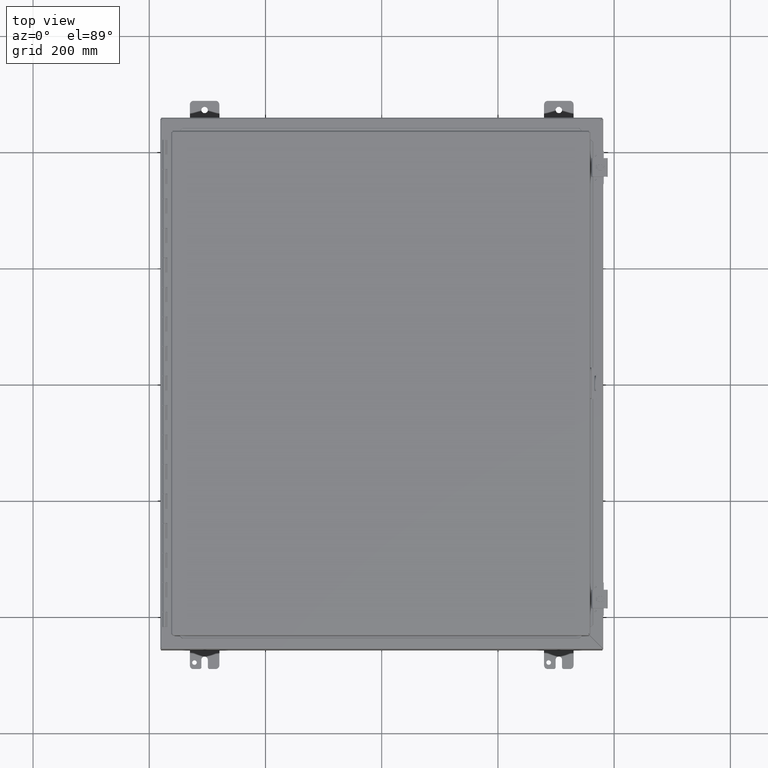
[diagram: clean part render]
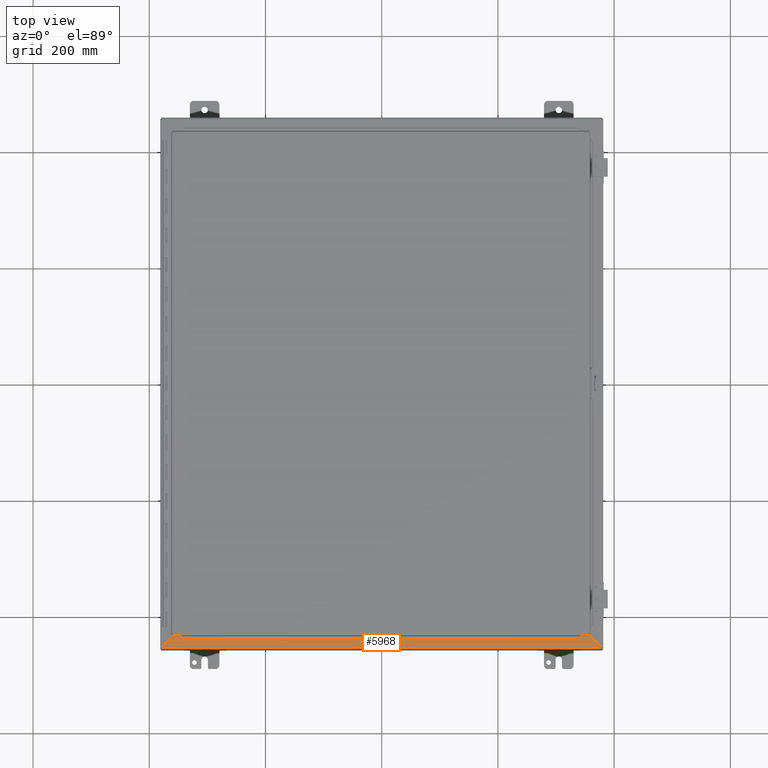
[diagram: same view with one face highlighted and labeled with its STEP entity id]
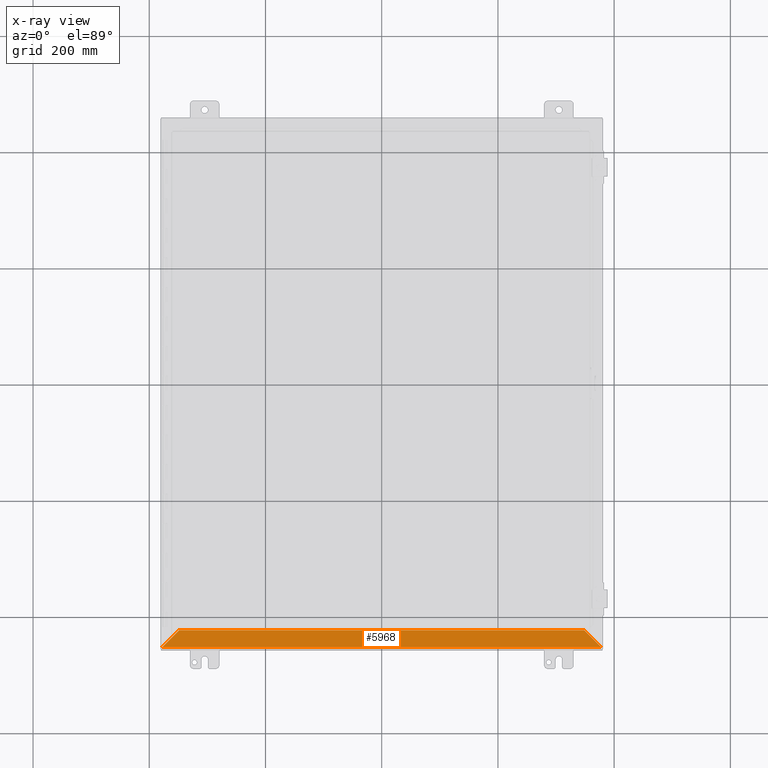
[diagram: x-ray of the same camera — body ghosted, the highlighted face saturated]
A machine part, top view. The second image highlights one B-rep face of the part: STEP entity #5968.
The next image is the same camera in x-ray: the body ghosted, the highlighted face saturated — about 0% of this face is hidden behind the body in this view.
In plain terms, the highlighted planar face has unit normal (0, 0, -1).
Its self-contained STEP definition (entity closure, byte-faithful):
#4897=CARTESIAN_POINT('',(-13.71920145654399,-16.730250000000034,6.000000000000012));
#4898=VERTEX_POINT('',#4897);
#4945=CARTESIAN_POINT('',(13.719201456543985,-16.730250000000023,6.000000000000006));
#4946=VERTEX_POINT('',#4945);
#4971=CARTESIAN_POINT('',(13.719201456543981,-16.730250000000026,6.000000000000004));
#4972=DIRECTION('',(-1.0,0.0,0.0));
#4973=VECTOR('',#4972,27.43840291308797);
#4974=LINE('',#4971,#4973);
#4975=EDGE_CURVE('',#4946,#4898,#4974,.T.);
#5508=CARTESIAN_POINT('',(14.883701456543989,-17.894750000000023,5.999999999999996));
#5509=VERTEX_POINT('',#5508);
#5510=CARTESIAN_POINT('',(13.719201456543985,-16.730250000000023,6.000000000000004));
#5511=DIRECTION('',(0.707106781186549,-0.707106781186546,-7.011147E-015));
#5512=VECTOR('',#5511,1.646851693383472);
#5513=LINE('',#5510,#5512);
#5514=EDGE_CURVE('',#4946,#5509,#5513,.T.);
#5945=CARTESIAN_POINT('',(4.612807E-017,-17.30301692111545,6.000000000000001));
#5946=DIRECTION('',(0.0,0.0,-1.0));
#5947=DIRECTION('',(0.0,1.0,0.0));
#5948=AXIS2_PLACEMENT_3D('',#5945,#5946,#5947);
#5949=PLANE('',#5948);
#5950=ORIENTED_EDGE('',*,*,#4975,.T.);
#5951=CARTESIAN_POINT('',(-14.883701456543983,-17.894750000000034,6.000000000000001));
#5952=VERTEX_POINT('',#5951);
#5953=CARTESIAN_POINT('',(-14.883701456543983,-17.894750000000034,5.999999999999997));
#5954=DIRECTION('',(0.707106781186546,0.707106781186549,7.011147E-015));
#5955=VECTOR('',#5954,1.646851693383466);
#5956=LINE('',#5953,#5955);
#5957=EDGE_CURVE('',#5952,#4898,#5956,.T.);
#5958=ORIENTED_EDGE('',*,*,#5957,.F.);
#5959=CARTESIAN_POINT('',(-14.883701456543983,-17.894750000000034,5.999999999999998));
#5960=DIRECTION('',(1.0,0.0,0.0));
#5961=VECTOR('',#5960,29.76740291308797);
#5962=LINE('',#5959,#5961);
#5963=EDGE_CURVE('',#5952,#5509,#5962,.T.);
#5964=ORIENTED_EDGE('',*,*,#5963,.T.);
#5965=ORIENTED_EDGE('',*,*,#5514,.F.);
#5966=EDGE_LOOP('',(#5950,#5958,#5964,#5965));
#5967=FACE_OUTER_BOUND('',#5966,.T.);
#5968=ADVANCED_FACE('',(#5967),#5949,.F.);